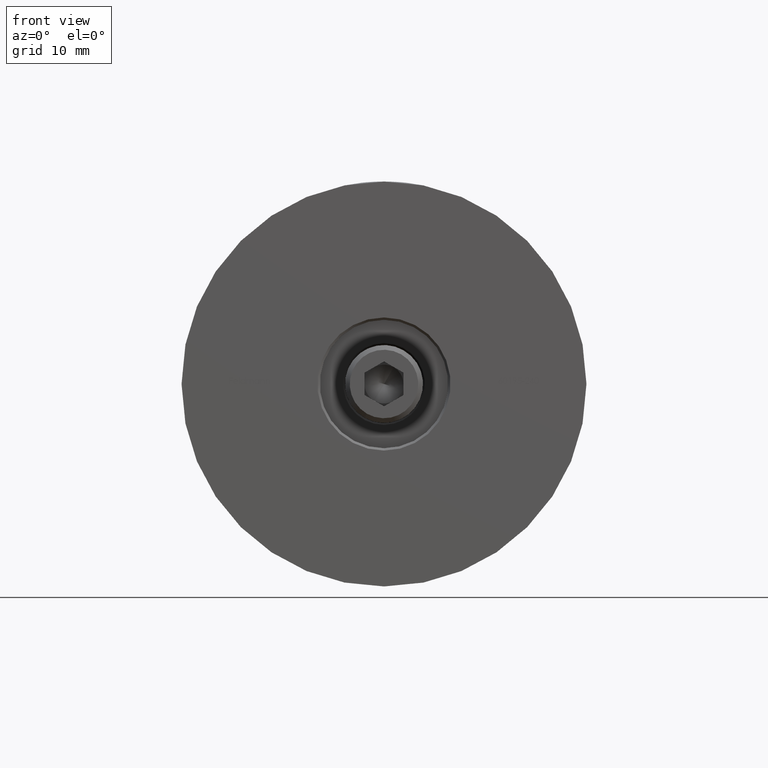
[diagram: clean part render]
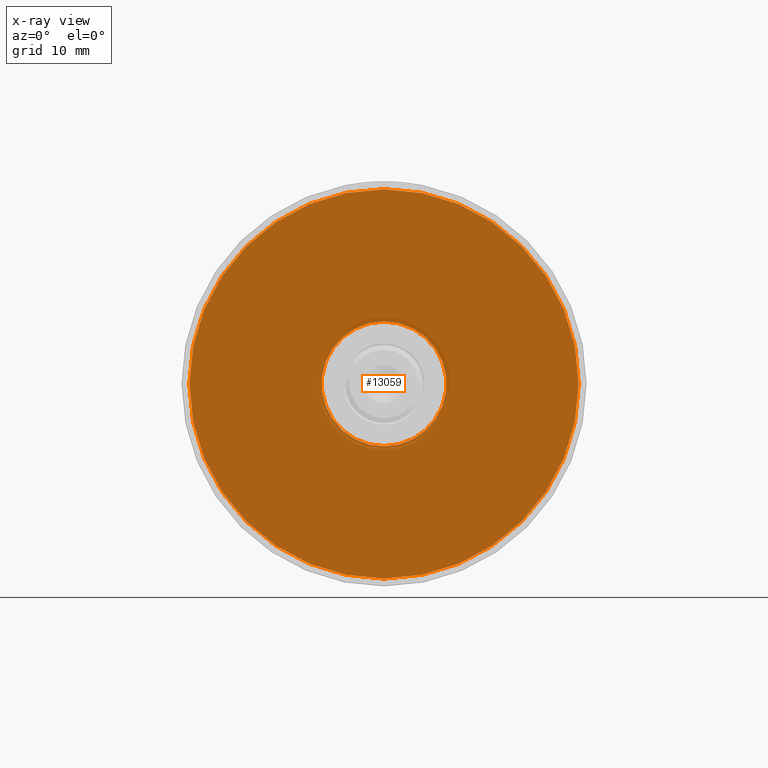
[diagram: x-ray — body ghosted, one internal face saturated and labeled with its STEP entity id]
A machine part, front view, then the same camera in x-ray: the body is ghosted and one INTERNAL B-rep face — a face not visible from any outside direction — is saturated and labeled: STEP entity #13059.
In plain terms, the highlighted planar face has unit normal (0, -1, 0).
Its self-contained STEP definition (entity closure, byte-faithful):
#72 = DIRECTION ( 'NONE',  ( -0.000000000000000000, 1.000000000000000000, 0.000000000000000000 ) ) ;
#333 = CIRCLE ( 'NONE', #8351, 25.00000000000000000 ) ;
#387 = DIRECTION ( 'NONE',  ( -0.000000000000000000, 1.000000000000000000, -0.000000000000000000 ) ) ;
#845 = ORIENTED_EDGE ( 'NONE', *, *, #16202, .T. ) ;
#1226 = CIRCLE ( 'NONE', #3088, 8.000000000000014211 ) ;
#1796 = DIRECTION ( 'NONE',  ( 0.000000000000000000, 0.000000000000000000, 1.000000000000000000 ) ) ;
#1903 = ORIENTED_EDGE ( 'NONE', *, *, #7122, .F. ) ;
#2023 = DIRECTION ( 'NONE',  ( 0.000000000000000000, 0.000000000000000000, 1.000000000000000000 ) ) ;
#2237 = CARTESIAN_POINT ( 'NONE',  ( 5.457486406938542366E-16, -4.000000000000000000, 0.000000000000000000 ) ) ;
#2672 = PLANE ( 'NONE',  #14241 ) ;
#2881 = CIRCLE ( 'NONE', #10664, 25.00000000000000000 ) ;
#3088 = AXIS2_PLACEMENT_3D ( 'NONE', #6488, #4036, #6435 ) ;
#3309 = AXIS2_PLACEMENT_3D ( 'NONE', #15450, #8849, #3644 ) ;
#3323 = DIRECTION ( 'NONE',  ( -0.000000000000000000, 1.000000000000000000, -0.000000000000000000 ) ) ;
#3644 = DIRECTION ( 'NONE',  ( 0.000000000000000000, 0.000000000000000000, 1.000000000000000000 ) ) ;
#3867 = CARTESIAN_POINT ( 'NONE',  ( 1.525466080011738479E-15, -4.000000000000000000, 8.000000000000014211 ) ) ;
#4036 = DIRECTION ( 'NONE',  ( -0.000000000000000000, 1.000000000000000000, -0.000000000000000000 ) ) ;
#4842 = VERTEX_POINT ( 'NONE', #6916 ) ;
#5585 = EDGE_CURVE ( 'NONE', #4842, #10769, #10575, .T. ) ;
#6072 = FACE_BOUND ( 'NONE', #13456, .T. ) ;
#6435 = DIRECTION ( 'NONE',  ( 0.000000000000000000, 0.000000000000000000, 1.000000000000000000 ) ) ;
#6487 = CARTESIAN_POINT ( 'NONE',  ( 5.457486406938542366E-16, -4.000000000000000000, 25.00000000000000000 ) ) ;
#6488 = CARTESIAN_POINT ( 'NONE',  ( 5.457486406938542366E-16, -4.000000000000000000, 0.000000000000000000 ) ) ;
#6916 = CARTESIAN_POINT ( 'NONE',  ( 5.457486406938542366E-16, -4.000000000000000000, -8.000000000000014211 ) ) ;
#7122 = EDGE_CURVE ( 'NONE', #16544, #13424, #333, .T. ) ;
#7755 = CARTESIAN_POINT ( 'NONE',  ( 7.000000000000000888, -4.000000000000000000, 0.000000000000000000 ) ) ;
#8048 = CARTESIAN_POINT ( 'NONE',  ( 5.457486406938542366E-16, -4.000000000000000000, 0.000000000000000000 ) ) ;
#8351 = AXIS2_PLACEMENT_3D ( 'NONE', #2237, #3323, #2023 ) ;
#8849 = DIRECTION ( 'NONE',  ( -0.000000000000000000, 1.000000000000000000, -0.000000000000000000 ) ) ;
#10168 = ORIENTED_EDGE ( 'NONE', *, *, #5585, .T. ) ;
#10429 = DIRECTION ( 'NONE',  ( 0.000000000000000000, 0.000000000000000000, 1.000000000000000000 ) ) ;
#10575 = CIRCLE ( 'NONE', #3309, 8.000000000000014211 ) ;
#10664 = AXIS2_PLACEMENT_3D ( 'NONE', #8048, #387, #1796 ) ;
#10769 = VERTEX_POINT ( 'NONE', #3867 ) ;
#13059 = ADVANCED_FACE ( 'NONE', ( #6072, #14930 ), #2672, .F. ) ;
#13283 = CARTESIAN_POINT ( 'NONE',  ( 3.607365638562237181E-15, -4.000000000000000000, -25.00000000000000000 ) ) ;
#13424 = VERTEX_POINT ( 'NONE', #6487 ) ;
#13456 = EDGE_LOOP ( 'NONE', ( #10168, #845 ) ) ;
#13856 = EDGE_CURVE ( 'NONE', #13424, #16544, #2881, .T. ) ;
#14241 = AXIS2_PLACEMENT_3D ( 'NONE', #7755, #72, #10429 ) ;
#14930 = FACE_OUTER_BOUND ( 'NONE', #15281, .T. ) ;
#15281 = EDGE_LOOP ( 'NONE', ( #15744, #1903 ) ) ;
#15450 = CARTESIAN_POINT ( 'NONE',  ( 5.457486406938542366E-16, -4.000000000000000000, 0.000000000000000000 ) ) ;
#15744 = ORIENTED_EDGE ( 'NONE', *, *, #13856, .F. ) ;
#16202 = EDGE_CURVE ( 'NONE', #10769, #4842, #1226, .T. ) ;
#16544 = VERTEX_POINT ( 'NONE', #13283 ) ;